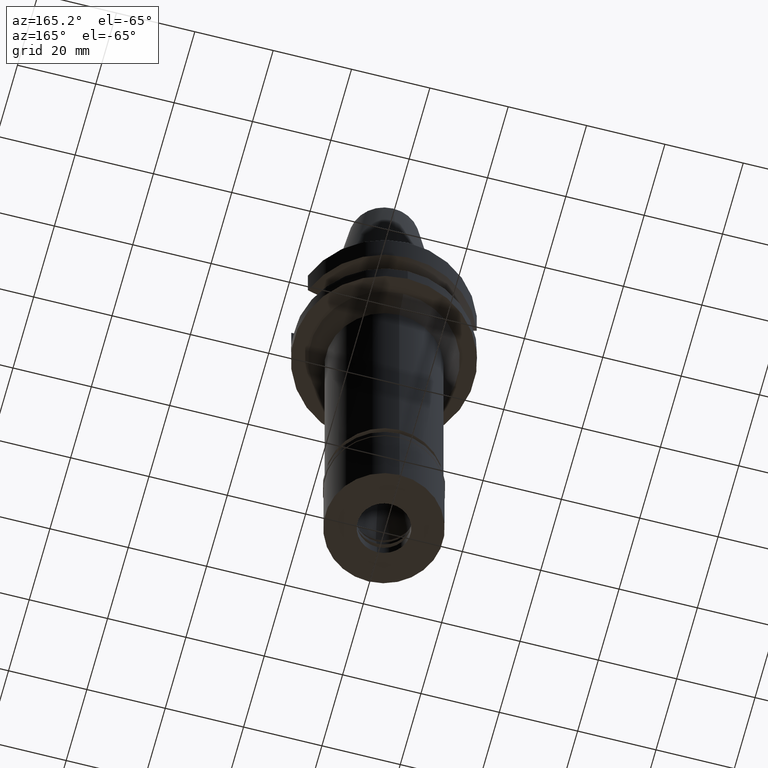
[diagram: clean part render]
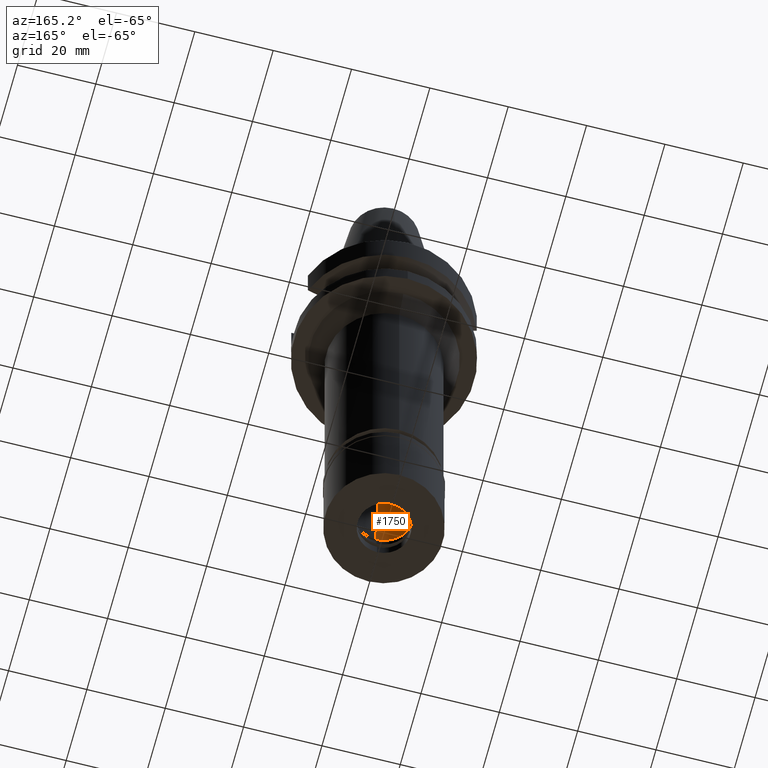
[diagram: same view with one face highlighted and labeled with its STEP entity id]
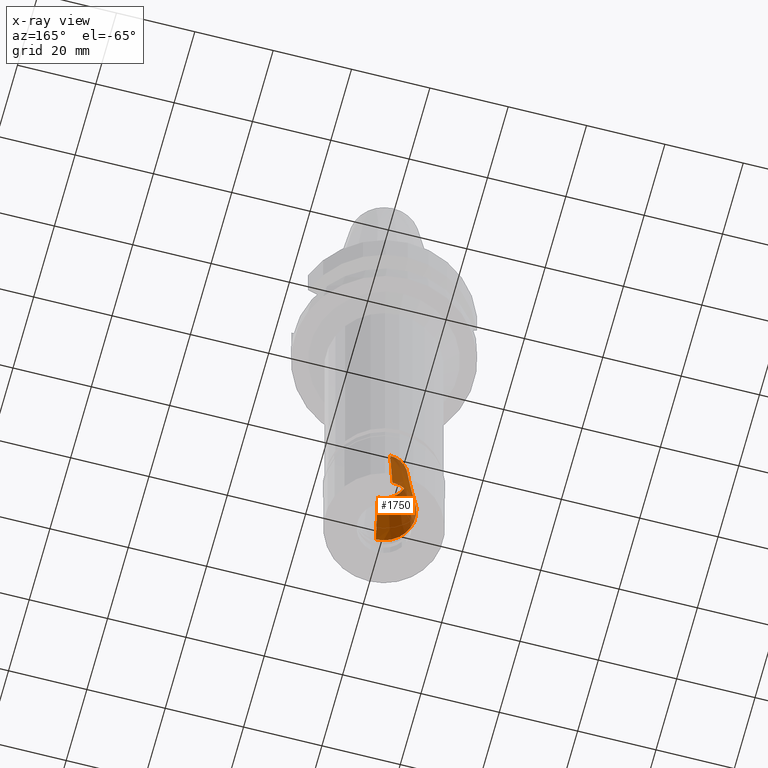
[diagram: x-ray of the same camera — body ghosted, the highlighted face saturated]
A machine part, auxiliary view. The second image highlights one B-rep face of the part: STEP entity #1750.
The next image is the same camera in x-ray: the body ghosted, the highlighted face saturated — about 24% of this face is hidden behind the body in this view.
In plain terms, the highlighted conical surface has half-angle 6 deg.
Its self-contained STEP definition (entity closure, byte-faithful):
#33 = CIRCLE ( 'NONE', #656, 8.000000000000000000 ) ;
#95 = CARTESIAN_POINT ( 'NONE',  ( 0.0000000000000000000, 0.0000000000000000000, -110.0000000000000000 ) ) ;
#126 = AXIS2_PLACEMENT_3D ( 'NONE', #882, #1863, #2736 ) ;
#224 = EDGE_CURVE ( 'NONE', #2580, #1171, #1429, .T. ) ;
#357 = CARTESIAN_POINT ( 'NONE',  ( 0.0000000000000000000, 0.0000000000000000000, -100.0000000000000000 ) ) ;
#477 = CARTESIAN_POINT ( 'NONE',  ( 0.0000000000000000000, 5.897915294685999399, -90.00000000000000000 ) ) ;
#534 = VERTEX_POINT ( 'NONE', #2765 ) ;
#656 = AXIS2_PLACEMENT_3D ( 'NONE', #95, #2595, #1304 ) ;
#696 = ORIENTED_EDGE ( 'NONE', *, *, #224, .T. ) ;
#791 = DIRECTION ( 'NONE',  ( 0.0000000000000000000, 0.1045284632676965891, 0.9945218953682687379 ) ) ;
#854 = LINE ( 'NONE', #2159, #1435 ) ;
#882 = CARTESIAN_POINT ( 'NONE',  ( 0.0000000000000000000, 0.0000000000000000000, -90.00000000000000000 ) ) ;
#1017 = CARTESIAN_POINT ( 'NONE',  ( 0.0000000000000000000, 8.000000000000000000, -110.0000000000000000 ) ) ;
#1171 = VERTEX_POINT ( 'NONE', #1756 ) ;
#1197 = EDGE_CURVE ( 'NONE', #534, #1171, #854, .T. ) ;
#1304 = DIRECTION ( 'NONE',  ( 0.0000000000000000000, -1.000000000000000000, 0.0000000000000000000 ) ) ;
#1429 = CIRCLE ( 'NONE', #126, 5.897915294685999399 ) ;
#1435 = VECTOR ( 'NONE', #791, 1000.000000000000227 ) ;
#1519 = CARTESIAN_POINT ( 'NONE',  ( 0.0000000000000000000, 8.000000000000000000, -110.0000000000000000 ) ) ;
#1563 = AXIS2_PLACEMENT_3D ( 'NONE', #357, #1694, #2631 ) ;
#1638 = ORIENTED_EDGE ( 'NONE', *, *, #2015, .T. ) ;
#1694 = DIRECTION ( 'NONE',  ( 0.0000000000000000000, 0.0000000000000000000, -1.000000000000000000 ) ) ;
#1750 = ADVANCED_FACE ( 'NONE', ( #1752 ), #2812, .F. ) ;
#1752 = FACE_OUTER_BOUND ( 'NONE', #2751, .T. ) ;
#1756 = CARTESIAN_POINT ( 'NONE',  ( 0.0000000000000000000, -5.897915294685999399, -90.00000000000000000 ) ) ;
#1825 = EDGE_CURVE ( 'NONE', #534, #2326, #33, .T. ) ;
#1852 = DIRECTION ( 'NONE',  ( 0.0000000000000000000, -0.1045284632676965891, 0.9945218953682687379 ) ) ;
#1863 = DIRECTION ( 'NONE',  ( 0.0000000000000000000, 0.0000000000000000000, 1.000000000000000000 ) ) ;
#1917 = ORIENTED_EDGE ( 'NONE', *, *, #1197, .F. ) ;
#2015 = EDGE_CURVE ( 'NONE', #2326, #2580, #2300, .T. ) ;
#2159 = CARTESIAN_POINT ( 'NONE',  ( 0.0000000000000000000, -8.000000000000000000, -110.0000000000000000 ) ) ;
#2300 = LINE ( 'NONE', #1017, #2726 ) ;
#2326 = VERTEX_POINT ( 'NONE', #1519 ) ;
#2580 = VERTEX_POINT ( 'NONE', #477 ) ;
#2595 = DIRECTION ( 'NONE',  ( 0.0000000000000000000, 0.0000000000000000000, -1.000000000000000000 ) ) ;
#2631 = DIRECTION ( 'NONE',  ( 0.0000000000000000000, -1.000000000000000000, 0.0000000000000000000 ) ) ;
#2726 = VECTOR ( 'NONE', #1852, 1000.000000000000227 ) ;
#2736 = DIRECTION ( 'NONE',  ( 0.0000000000000000000, 1.000000000000000000, 0.0000000000000000000 ) ) ;
#2743 = ORIENTED_EDGE ( 'NONE', *, *, #1825, .T. ) ;
#2751 = EDGE_LOOP ( 'NONE', ( #696, #1917, #2743, #1638 ) ) ;
#2765 = CARTESIAN_POINT ( 'NONE',  ( 0.0000000000000000000, -8.000000000000000000, -110.0000000000000000 ) ) ;
#2812 = CONICAL_SURFACE ( 'NONE', #1563, 6.948957647342999699, 0.1047197551196402399 ) ;